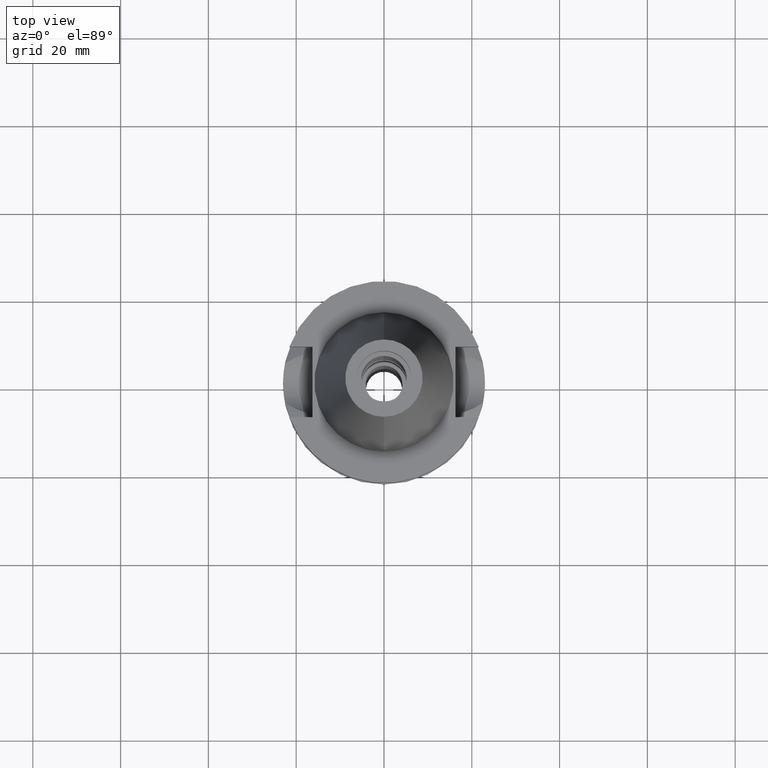
[diagram: clean part render]
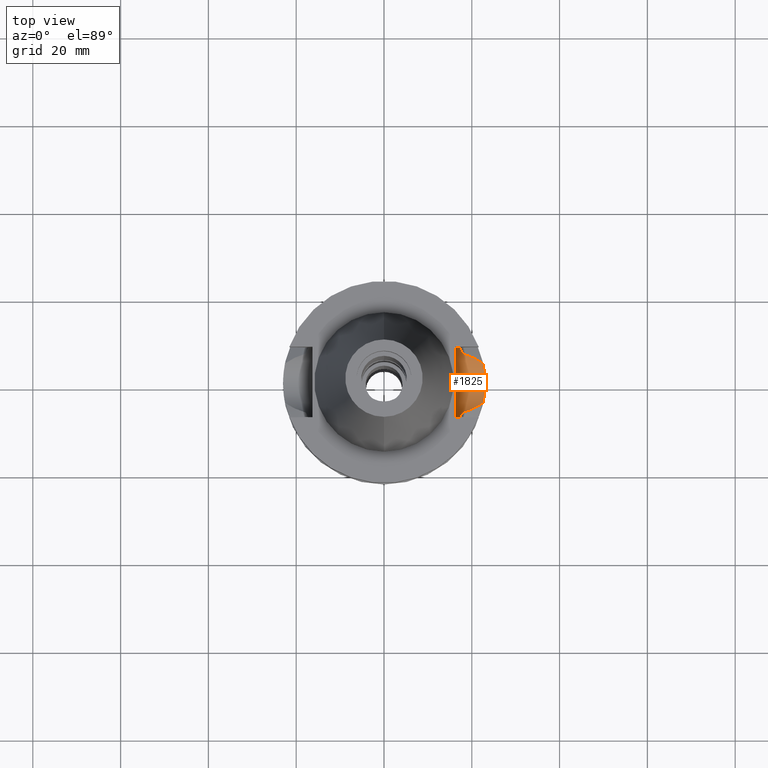
[diagram: same view with one face highlighted and labeled with its STEP entity id]
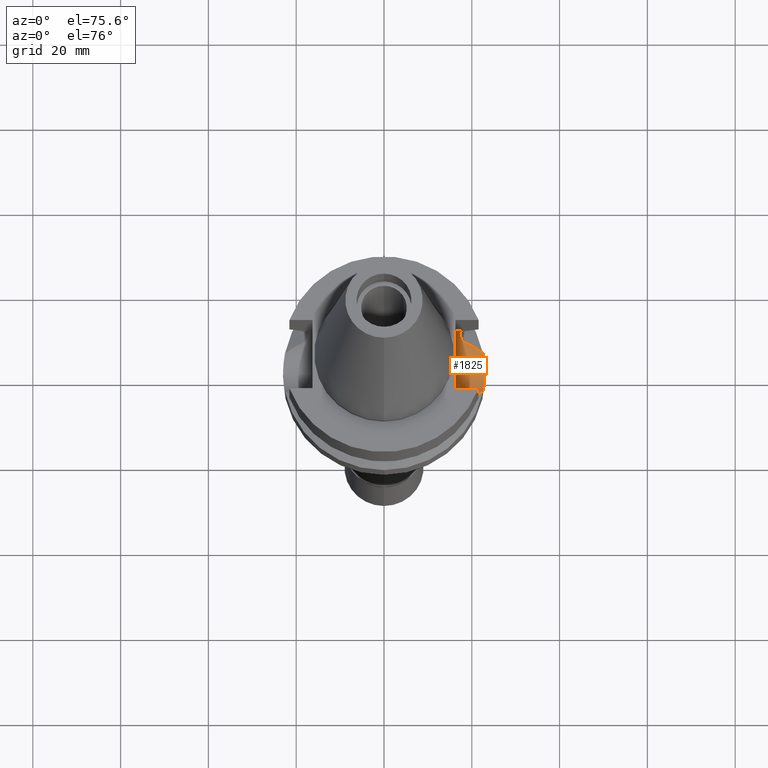
[diagram: same view with one face highlighted and labeled with its STEP entity id]
A machine part, top view. The second image highlights one B-rep face of the part: STEP entity #1825.
A second angle (auxiliary view) of the same face is appended — the face is thin or edge-on in the first view.
In plain terms, the highlighted cylindrical surface (edge-blend (fillet) strip) has radius 8.05 mm, axis along (1, 0, 0).
Its self-contained STEP definition (entity closure, byte-faithful):
#3 = CARTESIAN_POINT ( 'NONE',  ( 22.55786346208000026, -4.488072640470000430, -17.63279163029000074 ) ) ;
#6 = ORIENTED_EDGE ( 'NONE', *, *, #2796, .T. ) ;
#24 = CARTESIAN_POINT ( 'NONE',  ( 17.75736593456000278, 6.758398853743999624, -15.32339055352999857 ) ) ;
#64 = EDGE_CURVE ( 'NONE', #1322, #1057, #2634, .T. ) ;
#67 = CARTESIAN_POINT ( 'NONE',  ( 22.91429733645878031, 1.985733362197450447, -18.75237216576562105 ) ) ;
#97 = CARTESIAN_POINT ( 'NONE',  ( 21.21497948593363603, -5.360238238268946631, -16.98192308340398426 ) ) ;
#100 = CARTESIAN_POINT ( 'NONE',  ( 17.61323061601335738, -7.137107428168286916, -14.73815501054308541 ) ) ;
#108 = CARTESIAN_POINT ( 'NONE',  ( 16.29999999999999716, 8.050000000000000711, -10.94999999999999929 ) ) ;
#112 = CARTESIAN_POINT ( 'NONE',  ( 16.29999999999999716, 0.0000000000000000000, -10.94999999999999929 ) ) ;
#117 = EDGE_CURVE ( 'NONE', #2944, #1803, #1432, .T. ) ;
#140 = CARTESIAN_POINT ( 'NONE',  ( 22.55786346208000026, 4.488072640470000430, -17.63279163029000074 ) ) ;
#155 = CARTESIAN_POINT ( 'NONE',  ( 17.72682660578003322, -8.027186146920309184, -11.61172867019492472 ) ) ;
#174 = ORIENTED_EDGE ( 'NONE', *, *, #1616, .F. ) ;
#176 = CARTESIAN_POINT ( 'NONE',  ( 18.30417677704669899, -8.050000009833846448, -11.30245973841521945 ) ) ;
#207 = CARTESIAN_POINT ( 'NONE',  ( 22.84960736076065757, -2.626496214298370990, -18.56043423240677726 ) ) ;
#224 = CARTESIAN_POINT ( 'NONE',  ( 22.77603792420031681, -3.203302022959079398, -18.33792449711479122 ) ) ;
#233 = CARTESIAN_POINT ( 'NONE',  ( 17.43826181022011923, 7.543903599374800706, -13.75965695384212673 ) ) ;
#286 = CARTESIAN_POINT ( 'NONE',  ( 17.32020050329956007, -7.811458914743212745, -12.90105448524559506 ) ) ;
#297 = CARTESIAN_POINT ( 'NONE',  ( 17.40050649189846865, -7.630573670530795383, -13.51506551006684020 ) ) ;
#302 = CARTESIAN_POINT ( 'NONE',  ( 17.32791029655155768, 7.797415212483936209, -13.04847605244499675 ) ) ;
#319 = CARTESIAN_POINT ( 'NONE',  ( 16.29999999999999716, 0.0000000000000000000, -10.94999999999999929 ) ) ;
#347 = CARTESIAN_POINT ( 'NONE',  ( 18.96736186693999926, -8.050001277873001015, -10.94999977540000025 ) ) ;
#392 = LINE ( 'NONE', #1477, #1443 ) ;
#411 = DIRECTION ( 'NONE',  ( 1.000000000000000000, 0.0000000000000000000, 0.0000000000000000000 ) ) ;
#414 = VECTOR ( 'NONE', #2172, 1000.000000000000114 ) ;
#472 = CARTESIAN_POINT ( 'NONE',  ( 22.69499175120757428, -3.748172238425885094, -18.08540424731100771 ) ) ;
#479 = CARTESIAN_POINT ( 'NONE',  ( 17.42527193745475955, 7.573805764818990482, -13.67764394460613531 ) ) ;
#539 = EDGE_CURVE ( 'NONE', #2462, #1057, #601, .T. ) ;
#565 = CARTESIAN_POINT ( 'NONE',  ( 19.88846857243759203, -5.976631618586582206, -16.34321349427950665 ) ) ;
#587 = CARTESIAN_POINT ( 'NONE',  ( 18.71038411042896143, -6.447011788784515751, -15.77813527052500753 ) ) ;
#601 = CIRCLE ( 'NONE', #1936, 8.050000000000000711 ) ;
#622 = B_SPLINE_CURVE_WITH_KNOTS ( 'NONE', 3,
 ( #1434, #1669, #587, #2146, #2367, #565, #1225, #1474, #808, #2601, #1485, #97, #1968, #1938 ),
 .UNSPECIFIED., .F., .F.,
 ( 4, 2, 2, 1, 1, 2, 2, 4 ),
 ( 0.0000000000000000000, 0.2500000000000027756, 0.3750000000000037192, 0.4375000000000037192, 0.4687500000000034417, 0.4843750000000035527, 0.5000000000000036637, 1.000000000000000000 ),
 .UNSPECIFIED. ) ;
#623 = CARTESIAN_POINT ( 'NONE',  ( 17.75736593456000278, -6.758398853743999624, -15.32339055352999857 ) ) ;
#681 = CARTESIAN_POINT ( 'NONE',  ( 17.47454530892918001, 7.459745912517259825, -13.97656767980444492 ) ) ;
#694 = B_SPLINE_CURVE_WITH_KNOTS ( 'NONE', 3,
 ( #1615, #2565, #1601, #24 ),
 .UNSPECIFIED., .F., .F.,
 ( 4, 4 ),
 ( 0.0000000000000000000, 1.000000000000000000 ),
 .UNSPECIFIED. ) ;
#757 = CARTESIAN_POINT ( 'NONE',  ( 18.96738966519999892, 8.049994318180997865, -10.95000099923000114 ) ) ;
#759 = CARTESIAN_POINT ( 'NONE',  ( 22.89051023965599541, 2.240348351733205678, -18.68204066351360026 ) ) ;
#764 = CARTESIAN_POINT ( 'NONE',  ( 17.41029186860104261, -7.608187570459147508, -13.58033536419008414 ) ) ;
#769 = EDGE_CURVE ( 'NONE', #1803, #858, #2410, .T. ) ;
#795 = CARTESIAN_POINT ( 'NONE',  ( 22.88449147061026778, 2.300863271005849864, -18.66418741812480420 ) ) ;
#803 = CARTESIAN_POINT ( 'NONE',  ( 17.23531622903000127, 7.996491146289001151, -11.87660607780999911 ) ) ;
#808 = CARTESIAN_POINT ( 'NONE',  ( 20.28702041605495765, -5.797510260322919606, -16.53494767859328363 ) ) ;
#816 = B_SPLINE_CURVE_WITH_KNOTS ( 'NONE', 3,
 ( #927, #2762, #1386, #1774 ),
 .UNSPECIFIED., .F., .F.,
 ( 4, 4 ),
 ( 0.0000000000000000000, 1.000000000000000000 ),
 .UNSPECIFIED. ) ;
#858 = VERTEX_POINT ( 'NONE', #1630 ) ;
#863 = CARTESIAN_POINT ( 'NONE',  ( 22.63127206083332510, -4.119107768424306926, -17.88058345728823895 ) ) ;
#912 = CARTESIAN_POINT ( 'NONE',  ( 17.23531135313999840, -7.996501749111999402, -11.87660739352999961 ) ) ;
#915 = CARTESIAN_POINT ( 'NONE',  ( 22.96068271801697591, -1.551010899802252041, -18.89043203474381727 ) ) ;
#916 = ORIENTED_EDGE ( 'NONE', *, *, #2514, .T. ) ;
#922 = CARTESIAN_POINT ( 'NONE',  ( 17.42912000650152393, 7.564956682242244490, -13.70217383703447034 ) ) ;
#927 = CARTESIAN_POINT ( 'NONE',  ( 17.23531622903000127, 7.996491146289001151, -11.87660607780999911 ) ) ;
#932 = EDGE_LOOP ( 'NONE', ( #1574, #2666, #1181, #174, #1664, #1426, #6, #1768, #916, #1281, #2665 ) ) ;
#957 = VERTEX_POINT ( 'NONE', #623 ) ;
#963 = CARTESIAN_POINT ( 'NONE',  ( 23.00000000000000000, 0.0000000000000000000, -19.00000000000000000 ) ) ;
#978 = CARTESIAN_POINT ( 'NONE',  ( 22.89870805267842613, 2.155553977120024722, -18.70632175366176142 ) ) ;
#1033 = VERTEX_POINT ( 'NONE', #757 ) ;
#1057 = VERTEX_POINT ( 'NONE', #2776 ) ;
#1079 = B_SPLINE_CURVE_WITH_KNOTS ( 'NONE', 3,
 ( #2112, #1415, #2349, #286, #2360, #2124, #1886, #297, #764, #1663, #2801, #2597, #1229, #100, #1924 ),
 .UNSPECIFIED., .F., .F.,
 ( 4, 2, 2, 1, 1, 1, 2, 2, 4 ),
 ( 0.0000000000000000000, 0.2500000000000104361, 0.3750000000000163203, 0.4375000000000191513, 0.4687500000000210942, 0.4843750000000218159, 0.4921875000000222045, 0.5000000000000225375, 1.000000000000000000 ),
 .UNSPECIFIED. ) ;
#1091 = VERTEX_POINT ( 'NONE', #1621 ) ;
#1104 = EDGE_CURVE ( 'NONE', #2884, #957, #1079, .T. ) ;
#1117 = CARTESIAN_POINT ( 'NONE',  ( 22.87987288189902202, -2.346341787242341770, -18.65047434465817844 ) ) ;
#1157 = CARTESIAN_POINT ( 'NONE',  ( 17.23531135313999840, -7.996501749111999402, -11.87660739352999961 ) ) ;
#1181 = ORIENTED_EDGE ( 'NONE', *, *, #1246, .T. ) ;
#1197 = CARTESIAN_POINT ( 'NONE',  ( 17.75736593456000278, 6.758398853743999624, -15.32339055352999857 ) ) ;
#1201 = CARTESIAN_POINT ( 'NONE',  ( 22.96068121529291517, 1.353089349798903163, -18.88790167849560930 ) ) ;
#1225 = CARTESIAN_POINT ( 'NONE',  ( 20.04053501404856874, -5.910108140441254321, -16.41631946752189108 ) ) ;
#1229 = CARTESIAN_POINT ( 'NONE',  ( 17.50087097184368190, -7.400178023009382322, -14.16642114489269133 ) ) ;
#1231 = CYLINDRICAL_SURFACE ( 'NONE', #2047, 8.050000000000000711 ) ;
#1243 = CARTESIAN_POINT ( 'NONE',  ( 18.96736186693999926, -8.050001277873001015, -10.94999977540000025 ) ) ;
#1246 = EDGE_CURVE ( 'NONE', #1091, #1033, #816, .T. ) ;
#1281 = ORIENTED_EDGE ( 'NONE', *, *, #117, .T. ) ;
#1301 = DIRECTION ( 'NONE',  ( -1.000000000000000000, 0.0000000000000000000, 0.0000000000000000000 ) ) ;
#1302 = EDGE_CURVE ( 'NONE', #2249, #1091, #1746, .T. ) ;
#1322 = VERTEX_POINT ( 'NONE', #347 ) ;
#1325 = CARTESIAN_POINT ( 'NONE',  ( 22.80063108810311334, -3.023553595796229398, -18.41300237705099363 ) ) ;
#1370 = CARTESIAN_POINT ( 'NONE',  ( 22.87766922427335814, -2.367715245952879854, -18.64392938812026301 ) ) ;
#1377 = CARTESIAN_POINT ( 'NONE',  ( 17.42272207960860797, 7.579666851688067197, -13.66131438036482315 ) ) ;
#1386 = CARTESIAN_POINT ( 'NONE',  ( 18.30334768621650099, 8.049999956193227391, -11.30291651442934509 ) ) ;
#1415 = CARTESIAN_POINT ( 'NONE',  ( 17.25079842015505704, -7.963112712671646776, -12.16467410600582078 ) ) ;
#1422 = CARTESIAN_POINT ( 'NONE',  ( 22.99017030382322702, 0.7695635901632351672, -18.97276805502349717 ) ) ;
#1426 = ORIENTED_EDGE ( 'NONE', *, *, #64, .F. ) ;
#1432 = B_SPLINE_CURVE_WITH_KNOTS ( 'NONE', 3,
 ( #3, #863, #472, #224, #1325, #2068, #207, #1573, #2732, #1370, #1117, #2013, #915, #2920, #2713 ),
 .UNSPECIFIED., .F., .F.,
 ( 4, 2, 2, 1, 1, 1, 2, 2, 4 ),
 ( 0.0000000000000000000, 0.2499999999999885647, 0.3749999999999830691, 0.4374999999999809597, 0.4687499999999799605, 0.4843749999999797939, 0.4921874999999795719, 0.4999999999999793499, 1.000000000000000000 ),
 .UNSPECIFIED. ) ;
#1434 = CARTESIAN_POINT ( 'NONE',  ( 17.75736593456000278, -6.758398853743999624, -15.32339055352999857 ) ) ;
#1443 = VECTOR ( 'NONE', #2192, 1000.000000000000000 ) ;
#1472 = CARTESIAN_POINT ( 'NONE',  ( 17.42163746040700900, 7.582158997744677720, -13.65434146900870083 ) ) ;
#1474 = CARTESIAN_POINT ( 'NONE',  ( 20.21371015203672883, -5.831442411720712649, -16.49965283561709128 ) ) ;
#1477 = CARTESIAN_POINT ( 'NONE',  ( 16.29999999999999716, 8.050000000000000711, -10.94999999999999929 ) ) ;
#1485 = CARTESIAN_POINT ( 'NONE',  ( 20.35809529539413631, -5.764346797064700212, -16.56917364028806361 ) ) ;
#1573 = CARTESIAN_POINT ( 'NONE',  ( 22.86635761958277158, -2.475005752895530708, -18.61031446079977414 ) ) ;
#1574 = ORIENTED_EDGE ( 'NONE', *, *, #2881, .T. ) ;
#1576 = CARTESIAN_POINT ( 'NONE',  ( 23.00000000000000000, 0.0000000000000000000, -19.00000000000000000 ) ) ;
#1579 = CARTESIAN_POINT ( 'NONE',  ( 17.45719732142850944, 7.500152050135247883, -13.87559267603118229 ) ) ;
#1601 = CARTESIAN_POINT ( 'NONE',  ( 19.77328210346729520, 6.137069160759206277, -16.28355951934059220 ) ) ;
#1615 = CARTESIAN_POINT ( 'NONE',  ( 22.55786346208000026, 4.488072640470000430, -17.63279163029000074 ) ) ;
#1616 = EDGE_CURVE ( 'NONE', #2462, #1033, #392, .T. ) ;
#1621 = CARTESIAN_POINT ( 'NONE',  ( 17.23531622903000127, 7.996491146289001151, -11.87660607780999911 ) ) ;
#1625 = CARTESIAN_POINT ( 'NONE',  ( 17.68527682800418788, 6.947809492671185083, -15.03068569917483721 ) ) ;
#1630 = CARTESIAN_POINT ( 'NONE',  ( 22.55786346208000026, 4.488072640470000430, -17.63279163029000074 ) ) ;
#1643 = CARTESIAN_POINT ( 'NONE',  ( 22.94839409507195782, 1.547943184735890654, -18.85228501139597412 ) ) ;
#1663 = CARTESIAN_POINT ( 'NONE',  ( 17.41455302328521526, -7.598419946123484259, -13.60830999035339239 ) ) ;
#1664 = ORIENTED_EDGE ( 'NONE', *, *, #539, .T. ) ;
#1669 = CARTESIAN_POINT ( 'NONE',  ( 18.24678385467118602, -6.607554344069606955, -15.55649741851312129 ) ) ;
#1746 = B_SPLINE_CURVE_WITH_KNOTS ( 'NONE', 3,
 ( #1197, #1625, #2738, #1873, #1848, #681, #1579, #233, #922, #479, #1377, #1472, #302, #2408, #803 ),
 .UNSPECIFIED., .F., .F.,
 ( 4, 2, 2, 1, 1, 1, 2, 2, 4 ),
 ( 0.0000000000000000000, 0.2499999999999892863, 0.3749999999999840128, 0.4374999999999812927, 0.4687499999999796829, 0.4843749999999790168, 0.4921874999999789058, 0.4999999999999787947, 1.000000000000000000 ),
 .UNSPECIFIED. ) ;
#1768 = ORIENTED_EDGE ( 'NONE', *, *, #1104, .T. ) ;
#1774 = CARTESIAN_POINT ( 'NONE',  ( 18.96738966519999892, 8.049994318180997865, -10.95000099923000114 ) ) ;
#1803 = VERTEX_POINT ( 'NONE', #1576 ) ;
#1825 = ADVANCED_FACE ( 'NONE', ( #2210 ), #1231, .F. ) ;
#1848 = CARTESIAN_POINT ( 'NONE',  ( 17.51073134969324840, 7.374835522467920512, -14.18047752129070638 ) ) ;
#1873 = CARTESIAN_POINT ( 'NONE',  ( 17.53684213121960767, 7.312763963996079752, -14.31903632773397383 ) ) ;
#1878 = CARTESIAN_POINT ( 'NONE',  ( 22.99999999999999289, 0.3819689725552516957, -18.99999999999999645 ) ) ;
#1886 = CARTESIAN_POINT ( 'NONE',  ( 17.38156500873525445, -7.673733568343122258, -13.38455737039663163 ) ) ;
#1921 = CARTESIAN_POINT ( 'NONE',  ( 22.70468464528707386, 3.750122863476331059, -18.12838873811390883 ) ) ;
#1924 = CARTESIAN_POINT ( 'NONE',  ( 17.75736593456000278, -6.758398853743999624, -15.32339055352999857 ) ) ;
#1936 = AXIS2_PLACEMENT_3D ( 'NONE', #319, #1301, #2234 ) ;
#1938 = CARTESIAN_POINT ( 'NONE',  ( 22.55786346208000026, -4.488072640470000430, -17.63279163029000074 ) ) ;
#1953 = CARTESIAN_POINT ( 'NONE',  ( 22.88312644180570743, 2.314397374716642197, -18.66013545452687694 ) ) ;
#1968 = CARTESIAN_POINT ( 'NONE',  ( 21.93958014563155245, -4.934493212326309219, -17.33298160095813856 ) ) ;
#1986 = CARTESIAN_POINT ( 'NONE',  ( 22.81274470655331399, 3.007178025676898070, -18.45113452057063341 ) ) ;
#2013 = CARTESIAN_POINT ( 'NONE',  ( 22.88081948898895490, -2.337103539895061033, -18.65328544278835565 ) ) ;
#2047 = AXIS2_PLACEMENT_3D ( 'NONE', #112, #411, #2212 ) ;
#2068 = CARTESIAN_POINT ( 'NONE',  ( 22.83388749331516365, -2.758148469937105496, -18.51333671235214950 ) ) ;
#2112 = CARTESIAN_POINT ( 'NONE',  ( 17.23531135313999840, -7.996501749111999402, -11.87660739352999961 ) ) ;
#2120 = CARTESIAN_POINT ( 'NONE',  ( 22.55786346208000026, -4.488072640470000430, -17.63279163029000074 ) ) ;
#2124 = CARTESIAN_POINT ( 'NONE',  ( 17.36640820072438984, -7.707990843834798156, -13.27279658044272104 ) ) ;
#2146 = CARTESIAN_POINT ( 'NONE',  ( 19.36705799753551815, -6.194506557970903771, -16.09282765626643652 ) ) ;
#2172 = DIRECTION ( 'NONE',  ( -0.9999999999998816502, 4.790775581495907912E-07, -8.420253777260848103E-08 ) ) ;
#2192 = DIRECTION ( 'NONE',  ( 0.9999999999976612042, -2.130104522707915238E-06, -3.746079433811856250E-07 ) ) ;
#2210 = FACE_OUTER_BOUND ( 'NONE', #932, .T. ) ;
#2212 = DIRECTION ( 'NONE',  ( 0.0000000000000000000, 0.0000000000000000000, -1.000000000000000000 ) ) ;
#2220 = CARTESIAN_POINT ( 'NONE',  ( 18.96736186693999926, -8.050001277873001015, -10.94999977540000025 ) ) ;
#2234 = DIRECTION ( 'NONE',  ( 0.0000000000000000000, 0.0000000000000000000, -1.000000000000000000 ) ) ;
#2249 = VERTEX_POINT ( 'NONE', #2952 ) ;
#2349 = CARTESIAN_POINT ( 'NONE',  ( 17.27395659107183334, -7.913383733943912368, -12.45760532097251172 ) ) ;
#2360 = CARTESIAN_POINT ( 'NONE',  ( 17.33753291668423557, -7.772931439716203705, -13.04953900761608487 ) ) ;
#2367 = CARTESIAN_POINT ( 'NONE',  ( 19.57949487714935799, -6.108388453149090402, -16.19476879396074764 ) ) ;
#2397 = CARTESIAN_POINT ( 'NONE',  ( 22.88691049740376826, 2.276661173136930838, -18.67136472500487798 ) ) ;
#2408 = CARTESIAN_POINT ( 'NONE',  ( 17.26628387154822519, 7.929746129121769904, -12.45262345300353246 ) ) ;
#2410 = B_SPLINE_CURVE_WITH_KNOTS ( 'NONE', 3,
 ( #963, #1878, #1422, #1201, #1643, #2824, #67, #978, #759, #2397, #795, #1953, #1986, #1921, #140 ),
 .UNSPECIFIED., .F., .F.,
 ( 4, 2, 2, 1, 1, 1, 2, 2, 4 ),
 ( 0.0000000000000000000, 0.2500000000000089928, 0.3750000000000134892, 0.4375000000000158207, 0.4687500000000172640, 0.4843750000000178191, 0.4921875000000179856, 0.5000000000000180966, 1.000000000000000000 ),
 .UNSPECIFIED. ) ;
#2462 = VERTEX_POINT ( 'NONE', #108 ) ;
#2514 = EDGE_CURVE ( 'NONE', #957, #2944, #622, .T. ) ;
#2565 = CARTESIAN_POINT ( 'NONE',  ( 21.37344794597395747, 5.343258989416725058, -17.05846002344781809 ) ) ;
#2597 = CARTESIAN_POINT ( 'NONE',  ( 17.41902787752291815, -7.588152995022457326, -13.63747255037748651 ) ) ;
#2601 = CARTESIAN_POINT ( 'NONE',  ( 20.33569222489767370, -5.774841186123519599, -16.55838435435959610 ) ) ;
#2626 = B_SPLINE_CURVE_WITH_KNOTS ( 'NONE', 3,
 ( #2220, #176, #155, #912 ),
 .UNSPECIFIED., .F., .F.,
 ( 4, 4 ),
 ( 0.0000000000000000000, 1.000000000000000000 ),
 .UNSPECIFIED. ) ;
#2634 = LINE ( 'NONE', #1243, #414 ) ;
#2665 = ORIENTED_EDGE ( 'NONE', *, *, #769, .T. ) ;
#2666 = ORIENTED_EDGE ( 'NONE', *, *, #1302, .T. ) ;
#2713 = CARTESIAN_POINT ( 'NONE',  ( 23.00000000000000000, 0.0000000000000000000, -19.00000000000000000 ) ) ;
#2732 = CARTESIAN_POINT ( 'NONE',  ( 22.87433535236109350, -2.399816740978575780, -18.63402627520831700 ) ) ;
#2738 = CARTESIAN_POINT ( 'NONE',  ( 17.62113473884960513, 7.108360423385593485, -14.74096325148224373 ) ) ;
#2762 = CARTESIAN_POINT ( 'NONE',  ( 17.72598987415983274, 8.027133616520147896, -11.61218197588625500 ) ) ;
#2776 = CARTESIAN_POINT ( 'NONE',  ( 16.29999999999999716, -8.050000000000000711, -10.94999999999999929 ) ) ;
#2796 = EDGE_CURVE ( 'NONE', #1322, #2884, #2626, .T. ) ;
#2801 = CARTESIAN_POINT ( 'NONE',  ( 17.41740877569946377, -7.591869531162176443, -13.62695997434985884 ) ) ;
#2824 = CARTESIAN_POINT ( 'NONE',  ( 22.92627727867420973, 1.839863910746592390, -18.78755924481967554 ) ) ;
#2881 = EDGE_CURVE ( 'NONE', #858, #2249, #694, .T. ) ;
#2884 = VERTEX_POINT ( 'NONE', #1157 ) ;
#2920 = CARTESIAN_POINT ( 'NONE',  ( 23.00000000000000711, -0.7639550430825129412, -19.00000000000000711 ) ) ;
#2944 = VERTEX_POINT ( 'NONE', #2120 ) ;
#2952 = CARTESIAN_POINT ( 'NONE',  ( 17.75736593456000278, 6.758398853743999624, -15.32339055352999857 ) ) ;